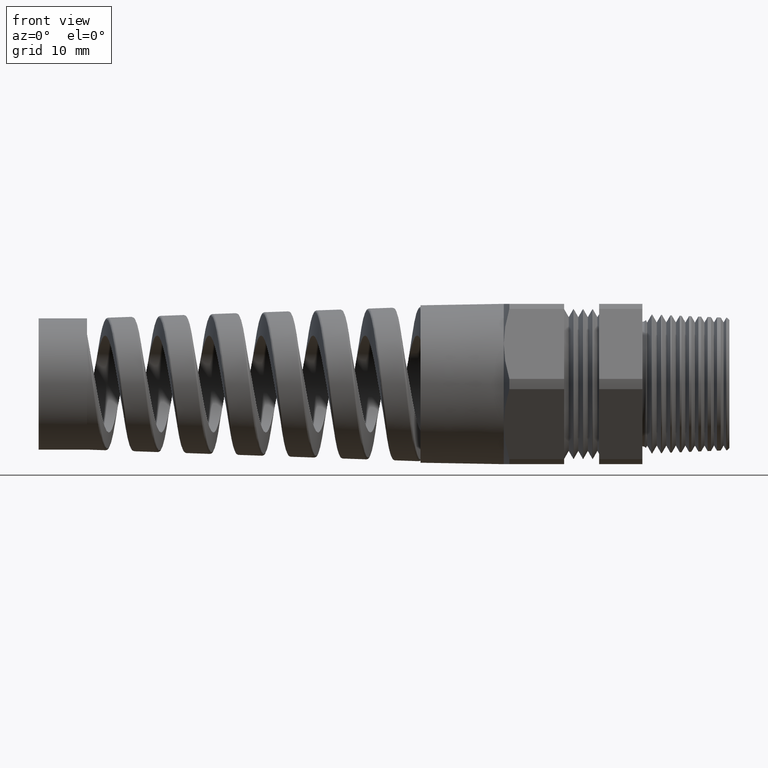
[diagram: clean part render]
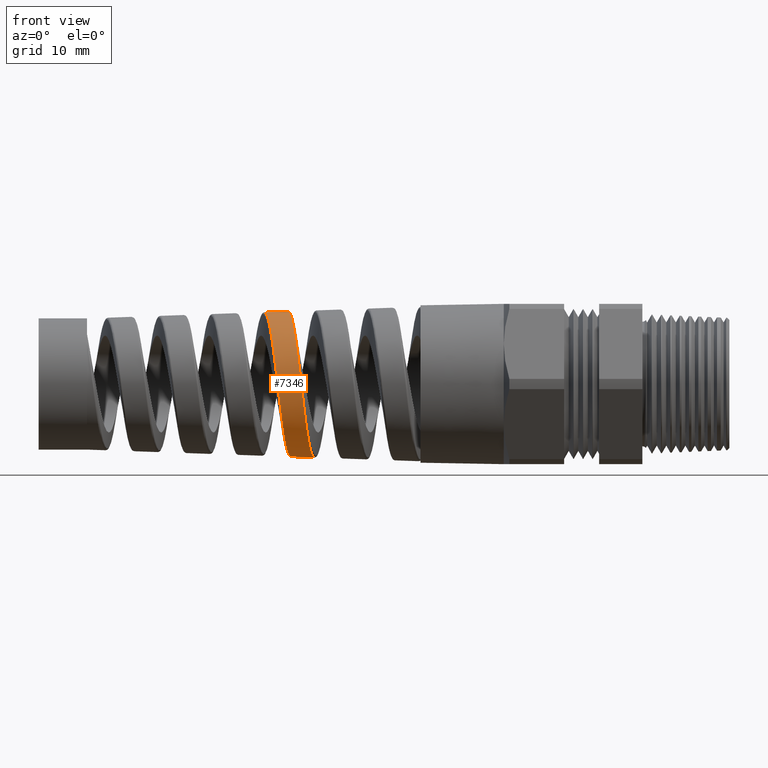
[diagram: same view with one face highlighted and labeled with its STEP entity id]
A machine part, front view. The second image highlights one B-rep face of the part: STEP entity #7346.
In plain terms, the highlighted conical surface has half-angle 2.001 deg.
Its self-contained STEP definition (entity closure, byte-faithful):
#1909 = ORIENTED_EDGE ( 'NONE', *, *, #7220, .T. ) ;
#1918 = EDGE_CURVE ( 'NONE', #7650, #10061, #9840, .T. ) ;
#1922 = ORIENTED_EDGE ( 'NONE', *, *, #1918, .T. ) ;
#2126 = ORIENTED_EDGE ( 'NONE', *, *, #2128, .T. ) ;
#2128 = EDGE_CURVE ( 'NONE', #10647, #10648, #10010, .T. ) ;
#2218 = ORIENTED_EDGE ( 'NONE', *, *, #7646, .F. ) ;
#3159 = DIRECTION ( 'NONE',  ( 0.0000000000000000000, 0.0000000000000000000, -1.000000000000000000 ) ) ;
#3160 = DIRECTION ( 'NONE',  ( 1.000000000000000000, 0.0000000000000000000, 0.0000000000000000000 ) ) ;
#3161 = CARTESIAN_POINT ( 'NONE',  ( -0.8125000000000001100, 0.0000000000000000000, 0.0000000000000000000 ) ) ;
#3162 = AXIS2_PLACEMENT_3D ( 'NONE', #3161, #3160, #3159 ) ;
#3163 = CONICAL_SURFACE ( 'NONE', #3162, 0.4699999999999997000, 0.03491723117042447300 ) ;
#3215 = FACE_OUTER_BOUND ( 'NONE', #7340, .T. ) ;
#3378 = DIRECTION ( 'NONE',  ( 0.9993904554178625300, 0.0000000000000000000, -0.03491013634572581700 ) ) ;
#3379 = VECTOR ( 'NONE', #3378, 39.37007874015748900 ) ;
#3380 = CARTESIAN_POINT ( 'NONE',  ( -0.8125000000000001100, 0.0000000000000000000, -0.4699999999999997000 ) ) ;
#3381 = LINE ( 'NONE', #3380, #3379 ) ;
#6129 = CARTESIAN_POINT ( 'NONE',  ( -2.215119307206334200, 2.784176562430698800E-017, 0.4210045038050243000 ) ) ;
#6130 = DIRECTION ( 'NONE',  ( 0.9993904554178625300, 4.275258673359080400E-018, 0.03491013634572581700 ) ) ;
#6131 = VECTOR ( 'NONE', #6130, 39.37007874015748900 ) ;
#6132 = CARTESIAN_POINT ( 'NONE',  ( -0.8125000000000001100, 5.755839955992556000E-017, 0.4699999999999997000 ) ) ;
#6133 = LINE ( 'NONE', #6132, #6131 ) ;
#6369 = CARTESIAN_POINT ( 'NONE',  ( -2.076797552563074400, 1.043480938897960100E-012, 0.4258362803023866300 ) ) ;
#6370 = CARTESIAN_POINT ( 'NONE',  ( -1.923861757300950900, -5.070719766844279200E-013, -0.4311785461163125700 ) ) ;
#6376 = CARTESIAN_POINT ( 'NONE',  ( -2.062229441914472400, 1.329914554193553800E-014, -0.4263451652194731300 ) ) ;
#7220 = EDGE_CURVE ( 'NONE', #10061, #10647, #3381, .T. ) ;
#7340 = EDGE_LOOP ( 'NONE', ( #2218, #1922, #1909, #2126 ) ) ;
#7346 = ADVANCED_FACE ( 'NONE', ( #3215 ), #3163, .T. ) ;
#7646 = EDGE_CURVE ( 'NONE', #7650, #10648, #6133, .T. ) ;
#7650 = VERTEX_POINT ( 'NONE', #6129 ) ;
#9811 = CARTESIAN_POINT ( 'NONE',  ( -2.116173145232934400, -0.3801107178877621800, -0.1894112708386795600 ) ) ;
#9812 = CARTESIAN_POINT ( 'NONE',  ( -2.117756058715003100, -0.3860301833082924700, -0.1768936628835282600 ) ) ;
#9813 = CARTESIAN_POINT ( 'NONE',  ( -2.122500251239112700, -0.4018981158437475200, -0.1386353389797038700 ) ) ;
#9814 = CARTESIAN_POINT ( 'NONE',  ( -2.125657122785306300, -0.4099741369737977000, -0.1121958589490515000 ) ) ;
#9815 = CARTESIAN_POINT ( 'NONE',  ( -2.132082280838380100, -0.4209303980319177300, -0.05739312598895813400 ) ) ;
#9816 = CARTESIAN_POINT ( 'NONE',  ( -2.135266699907467200, -0.4236481215021004100, -0.02975069205488502200 ) ) ;
#9817 = CARTESIAN_POINT ( 'NONE',  ( -2.140023320442490100, -0.4236923780623699800, 0.01164501807576939900 ) ) ;
#9818 = CARTESIAN_POINT ( 'NONE',  ( -2.141608370131281800, -0.4230347312642789300, 0.02545489649259991000 ) ) ;
#9819 = CARTESIAN_POINT ( 'NONE',  ( -2.144795417961039300, -0.4203485344139390500, 0.05309563620263108700 ) ) ;
#9820 = CARTESIAN_POINT ( 'NONE',  ( -2.146405414305417200, -0.4183019172757279100, 0.06699682875774197500 ) ) ;
#9821 = CARTESIAN_POINT ( 'NONE',  ( -2.151193136757477500, -0.4101894169592069600, 0.1079282427396677700 ) ) ;
#9822 = CARTESIAN_POINT ( 'NONE',  ( -2.154346860687548700, -0.4021837963883654900, 0.1343498035438426300 ) ) ;
#9823 = CARTESIAN_POINT ( 'NONE',  ( -2.160709831522184200, -0.3810678278982402900, 0.1854749057701259900 ) ) ;
#9824 = CARTESIAN_POINT ( 'NONE',  ( -2.163948174220060100, -0.3677808981392123300, 0.2103707262307776000 ) ) ;
#9825 = CARTESIAN_POINT ( 'NONE',  ( -2.170333724216252100, -0.3370407667190113400, 0.2563856273510340400 ) ) ;
#9826 = CARTESIAN_POINT ( 'NONE',  ( -2.173501188404381800, -0.3195432818590610600, 0.2777331769814783100 ) ) ;
#9827 = CARTESIAN_POINT ( 'NONE',  ( -2.178300380620762600, -0.2900656645453222900, 0.3072205272140758300 ) ) ;
#9828 = CARTESIAN_POINT ( 'NONE',  ( -2.179915411933544000, -0.2796495238208045500, 0.3166558919163637300 ) ) ;
#9829 = CARTESIAN_POINT ( 'NONE',  ( -2.183112918095220700, -0.2581548430550144600, 0.3342702169494448600 ) ) ;
#9830 = CARTESIAN_POINT ( 'NONE',  ( -2.184702475550037300, -0.2470365192257501200, 0.3424966497676935100 ) ) ;
#9831 = CARTESIAN_POINT ( 'NONE',  ( -2.189469216646200400, -0.2125931239941073200, 0.3654667528551890400 ) ) ;
#9832 = CARTESIAN_POINT ( 'NONE',  ( -2.192650424677276900, -0.1881420481766694600, 0.3785378004423865500 ) ) ;
#9833 = CARTESIAN_POINT ( 'NONE',  ( -2.199113136344785300, -0.1364339408455712800, 0.3998545835993656000 ) ) ;
#9834 = CARTESIAN_POINT ( 'NONE',  ( -2.202299937188767500, -0.1099473300095003100, 0.4077938091602387200 ) ) ;
#9835 = CARTESIAN_POINT ( 'NONE',  ( -2.207089309980519300, -0.06931209922265113600, 0.4157732884603037600 ) ) ;
#9836 = CARTESIAN_POINT ( 'NONE',  ( -2.208686052827661100, -0.05561489260312342500, 0.4177734716996044400 ) ) ;
#9837 = CARTESIAN_POINT ( 'NONE',  ( -2.211898997272656200, -0.02791081988986690900, 0.4204213805747106800 ) ) ;
#9838 = CARTESIAN_POINT ( 'NONE',  ( -2.213517861516596700, -0.01387881605430386700, 0.4210604445908061000 ) ) ;
#9839 = CARTESIAN_POINT ( 'NONE',  ( -2.215119307206334200, 2.784176562430698800E-017, 0.4210045038050243000 ) ) ;
#9840 = B_SPLINE_CURVE_WITH_KNOTS ( 'NONE', 3,
 ( #9839, #9838, #9837, #9836, #9835, #9834, #9833, #9832, #9831, #9830, #9829, #9828, #9827, #9826, #9825, #9824, #9823, #9822, #9821, #9820, #9819, #9818, #9817, #9816, #9815, #9814, #9813, #9812, #9811, #9884, #9883, #9882, #9881, #9880, #9879, #9878, #9877, #9876, #9875, #9874, #9873, #9872, #9871, #9870, #9869, #9868, #9867, #9866 ),
 .UNSPECIFIED., .F., .F.,
 ( 4, 2, 2, 2, 2, 2, 2, 2, 2, 2, 2, 2, 2, 2, 2, 2, 2, 2, 2, 2, 2, 2, 2, 4 ),
 ( 0.2216151733175633600, 0.2226839311813303700, 0.2237526890450973500, 0.2258902047726313600, 0.2280277205001653400, 0.2290964783639323200, 0.2301652362276993300, 0.2323027519552333100, 0.2344402676827672900, 0.2365777834103012800, 0.2376465412740682600, 0.2387152991378352600, 0.2408528148653692500, 0.2429903305929032300, 0.2440590884566702400, 0.2451278463204372100, 0.2472653620479712000, 0.2483341199117382000, 0.2494028777755051800, 0.2515403935030391900, 0.2526091513668061700, 0.2536779092305731500, 0.2547466670943401300, 0.2558154249581071100 ),
 .UNSPECIFIED. ) ;
#9866 = CARTESIAN_POINT ( 'NONE',  ( -2.062229441914472400, 1.329914554193553800E-014, -0.4263451652194731300 ) ) ;
#9867 = CARTESIAN_POINT ( 'NONE',  ( -2.063825477573070000, -0.01395292843343249500, -0.4262894134138082200 ) ) ;
#9868 = CARTESIAN_POINT ( 'NONE',  ( -2.065425443110430400, -0.02792882690003134800, -0.4255430973913266200 ) ) ;
#9869 = CARTESIAN_POINT ( 'NONE',  ( -2.068595137038326200, -0.05549271610161258400, -0.4227211031228996800 ) ) ;
#9870 = CARTESIAN_POINT ( 'NONE',  ( -2.070171449326642800, -0.06914560446160018800, -0.4206459009791070300 ) ) ;
#9871 = CARTESIAN_POINT ( 'NONE',  ( -2.073322197081778600, -0.09619460506115508300, -0.4151829868430589300 ) ) ;
#9872 = CARTESIAN_POINT ( 'NONE',  ( -2.074897092442200600, -0.1095906645854357500, -0.4117952803427924500 ) ) ;
#9873 = CARTESIAN_POINT ( 'NONE',  ( -2.078062058071485500, -0.1361199019454287000, -0.4036863613587381400 ) ) ;
#9874 = CARTESIAN_POINT ( 'NONE',  ( -2.079661006547419700, -0.1493242430358462700, -0.3989331496766117500 ) ) ;
#9875 = CARTESIAN_POINT ( 'NONE',  ( -2.084429702160264200, -0.1878971857981547300, -0.3828580817261832400 ) ) ;
#9876 = CARTESIAN_POINT ( 'NONE',  ( -2.087569269793646300, -0.2122254854576999500, -0.3697842178655615400 ) ) ;
#9877 = CARTESIAN_POINT ( 'NONE',  ( -2.092314892770109400, -0.2466754941616984000, -0.3467237233256899000 ) ) ;
#9878 = CARTESIAN_POINT ( 'NONE',  ( -2.093902625730761800, -0.2578160799268185400, -0.3384579319667925200 ) ) ;
#9879 = CARTESIAN_POINT ( 'NONE',  ( -2.097104477936413400, -0.2793888644926180200, -0.3207329976695971200 ) ) ;
#9880 = CARTESIAN_POINT ( 'NONE',  ( -2.098707077477254900, -0.2897389039943219500, -0.3113333880264249600 ) ) ;
#9881 = CARTESIAN_POINT ( 'NONE',  ( -2.103474226119235600, -0.3190980542872927100, -0.2819350974563049100 ) ) ;
#9882 = CARTESIAN_POINT ( 'NONE',  ( -2.106619612193608500, -0.3366090877237354900, -0.2606049500696529500 ) ) ;
#9883 = CARTESIAN_POINT ( 'NONE',  ( -2.111382976576679400, -0.3597553551559469800, -0.2260037871693351700 ) ) ;
#9884 = CARTESIAN_POINT ( 'NONE',  ( -2.112987432810376400, -0.3669811910278127900, -0.2139627875452752000 ) ) ;
#9993 = CARTESIAN_POINT ( 'NONE',  ( -1.977829830340415200, -0.3843963412531912200, -0.1916521700098685600 ) ) ;
#9994 = CARTESIAN_POINT ( 'NONE',  ( -1.974636681594156700, -0.3711079920159619500, -0.2164849647814191300 ) ) ;
#9995 = CARTESIAN_POINT ( 'NONE',  ( -1.973049513125465900, -0.3638982877073904700, -0.2284934216188252700 ) ) ;
#9996 = CARTESIAN_POINT ( 'NONE',  ( -1.968293962320907900, -0.3406165397178269600, -0.2633236460590730500 ) ) ;
#9997 = CARTESIAN_POINT ( 'NONE',  ( -1.965130840711806000, -0.3229076734556877200, -0.2849616131642401800 ) ) ;
#9998 = CARTESIAN_POINT ( 'NONE',  ( -1.960326524483633900, -0.2929521403161961000, -0.3149552689694131700 ) ) ;
#9999 = CARTESIAN_POINT ( 'NONE',  ( -1.958731140863362800, -0.2824914274107870900, -0.3244390776899054300 ) ) ;
#10000 = CARTESIAN_POINT ( 'NONE',  ( -1.955564914523019600, -0.2608524065845895800, -0.3422181524480417100 ) ) ;
#10001 = CARTESIAN_POINT ( 'NONE',  ( -1.952413944763081300, -0.2384329086760957900, -0.3588720128830281100 ) ) ;
#10002 = CARTESIAN_POINT ( 'NONE',  ( -1.949260315182379300, -0.2144712762482148000, -0.3732960296343728600 ) ) ;
#10003 = CARTESIAN_POINT ( 'NONE',  ( -1.946088633483998400, -0.1897262482666597100, -0.3865839652725555600 ) ) ;
#10004 = CARTESIAN_POINT ( 'NONE',  ( -1.944485418026325800, -0.1768923002336303700, -0.3926847210009064600 ) ) ;
#10005 = CARTESIAN_POINT ( 'NONE',  ( -1.939714329812301200, -0.1379237313726310000, -0.4089090931625425400 ) ) ;
#10006 = CARTESIAN_POINT ( 'NONE',  ( -1.936568000070856700, -0.1112165582655012100, -0.4170679351187565600 ) ) ;
#10007 = CARTESIAN_POINT ( 'NONE',  ( -1.930232984893496700, -0.05638501681395102100, -0.4281660889446417500 ) ) ;
#10008 = CARTESIAN_POINT ( 'NONE',  ( -1.927019032320634900, -0.02799380765455372600, -0.4310682579893311300 ) ) ;
#10009 = CARTESIAN_POINT ( 'NONE',  ( -1.923861757300950900, -5.070719766844279200E-013, -0.4311785461163125700 ) ) ;
#10010 = B_SPLINE_CURVE_WITH_KNOTS ( 'NONE', 3,
 ( #10009, #10008, #10007, #10006, #10005, #10004, #10003, #10002, #10001, #10000, #9999, #9998, #9997, #9996, #9995, #9994, #9993, #10068, #10067, #10066, #10065, #10064, #10063, #10062, #10060, #10059, #10058, #10057, #10056, #10055, #10054, #10053, #10052, #10051, #10050, #10049, #10048, #10047, #10046, #10045, #10044, #10043, #10042, #10041, #10040, #10039, #10038, #10037 ),
 .UNSPECIFIED., .F., .F.,
 ( 4, 2, 2, 2, 1, 2, 2, 2, 2, 2, 2, 2, 2, 2, 2, 1, 2, 2, 2, 2, 2, 2, 2, 2, 4 ),
 ( 0.1459030809867384000, 0.1480732067379834100, 0.1502433324892283900, 0.1513283953648509000, 0.1524134582404733900, 0.1534985211160958800, 0.1545835839917184000, 0.1567537097429633800, 0.1578387726185858700, 0.1589238354942083800, 0.1610939612454533600, 0.1621790241210758500, 0.1632640869966983700, 0.1654342127479433400, 0.1665192756235658300, 0.1676043384991883500, 0.1686894013748108400, 0.1697744642504333300, 0.1719445900016783300, 0.1730296528773008200, 0.1741147157529233100, 0.1762848415041683200, 0.1773699043797908000, 0.1784549672554133200, 0.1806250930066583000 ),
 .UNSPECIFIED. ) ;
#10037 = CARTESIAN_POINT ( 'NONE',  ( -2.076797552563074400, 1.043480938897960100E-012, 0.4258362803023866300 ) ) ;
#10038 = CARTESIAN_POINT ( 'NONE',  ( -2.073560522974395400, -0.02829417920503371100, 0.4259493543704374600 ) ) ;
#10039 = CARTESIAN_POINT ( 'NONE',  ( -2.070370743890332500, -0.05613692173087946000, 0.4232683946586029400 ) ) ;
#10040 = CARTESIAN_POINT ( 'NONE',  ( -2.065577687891743800, -0.09724183854251027000, 0.4152221501280765600 ) ) ;
#10041 = CARTESIAN_POINT ( 'NONE',  ( -2.063979768316906800, -0.1108329257002092100, 0.4118642469048192600 ) ) ;
#10042 = CARTESIAN_POINT ( 'NONE',  ( -2.060768155112068900, -0.1377870750190944600, 0.4037653727631361200 ) ) ;
#10043 = CARTESIAN_POINT ( 'NONE',  ( -2.059150513946662400, -0.1511743330918070600, 0.3990054519810080100 ) ) ;
#10044 = CARTESIAN_POINT ( 'NONE',  ( -2.054352166132657600, -0.1901131050677858900, 0.3829495448585421600 ) ) ;
#10045 = CARTESIAN_POINT ( 'NONE',  ( -2.051190882895088200, -0.2147481564723776000, 0.3698204341616820300 ) ) ;
#10046 = CARTESIAN_POINT ( 'NONE',  ( -2.046403617907777100, -0.2497198122856239500, 0.3465228709760360100 ) ) ;
#10047 = CARTESIAN_POINT ( 'NONE',  ( -2.044793833966299400, -0.2610887236452966700, 0.3381152906222067400 ) ) ;
#10048 = CARTESIAN_POINT ( 'NONE',  ( -2.041572713424761400, -0.2829291137157077800, 0.3202131805545523300 ) ) ;
#10049 = CARTESIAN_POINT ( 'NONE',  ( -2.039973216035998200, -0.2933236777621374700, 0.3107897526493362300 ) ) ;
#10050 = CARTESIAN_POINT ( 'NONE',  ( -2.035185855707454900, -0.3229769262824439000, 0.2811473365918411600 ) ) ;
#10051 = CARTESIAN_POINT ( 'NONE',  ( -2.032009132034799900, -0.3407196066358850200, 0.2595691446511408900 ) ) ;
#10052 = CARTESIAN_POINT ( 'NONE',  ( -2.027196252734507500, -0.3642135967907728100, 0.2244154121088070300 ) ) ;
#10053 = CARTESIAN_POINT ( 'NONE',  ( -2.025585271098647500, -0.3715001329990878500, 0.2122442541548598100 ) ) ;
#10054 = CARTESIAN_POINT ( 'NONE',  ( -2.022398368169838100, -0.3847061423460295100, 0.1875003407351292500 ) ) ;
#10055 = CARTESIAN_POINT ( 'NONE',  ( -2.019228853395093700, -0.3966344332797459600, 0.1622274457056542800 ) ) ;
#10056 = CARTESIAN_POINT ( 'NONE',  ( -2.016060046494853300, -0.4060436683709645600, 0.1359157947832626000 ) ) ;
#10057 = CARTESIAN_POINT ( 'NONE',  ( -2.012874898366895600, -0.4141756462424300800, 0.1090795171033918500 ) ) ;
#10058 = CARTESIAN_POINT ( 'NONE',  ( -2.011265557278206100, -0.4176162842092969700, 0.09532455173495703300 ) ) ;
#10059 = CARTESIAN_POINT ( 'NONE',  ( -2.006455713586710000, -0.4258311903116765400, 0.05383420106493348000 ) ) ;
#10060 = CARTESIAN_POINT ( 'NONE',  ( -2.003288429049578500, -0.4285251934832742200, 0.02602489185680835500 ) ) ;
#10061 = VERTEX_POINT ( 'NONE', #6376 ) ;
#10062 = CARTESIAN_POINT ( 'NONE',  ( -1.998515644072587700, -0.4285037365508978500, -0.01589764810358842600 ) ) ;
#10063 = CARTESIAN_POINT ( 'NONE',  ( -1.996921397629160000, -0.4278146975049289500, -0.02990687788424641100 ) ) ;
#10064 = CARTESIAN_POINT ( 'NONE',  ( -1.993715751915653400, -0.4250320761854214400, -0.05799635146366245000 ) ) ;
#10065 = CARTESIAN_POINT ( 'NONE',  ( -1.992112481396464600, -0.4229394481267302900, -0.07199465829478500500 ) ) ;
#10066 = CARTESIAN_POINT ( 'NONE',  ( -1.987348386527479500, -0.4146989839839436700, -0.1132143307941429500 ) ) ;
#10067 = CARTESIAN_POINT ( 'NONE',  ( -1.984204601963194700, -0.4065842453265443600, -0.1399235296441617400 ) ) ;
#10068 = CARTESIAN_POINT ( 'NONE',  ( -1.979436738985152200, -0.3904693173515390600, -0.1788162092748011300 ) ) ;
#10647 = VERTEX_POINT ( 'NONE', #6370 ) ;
#10648 = VERTEX_POINT ( 'NONE', #6369 ) ;